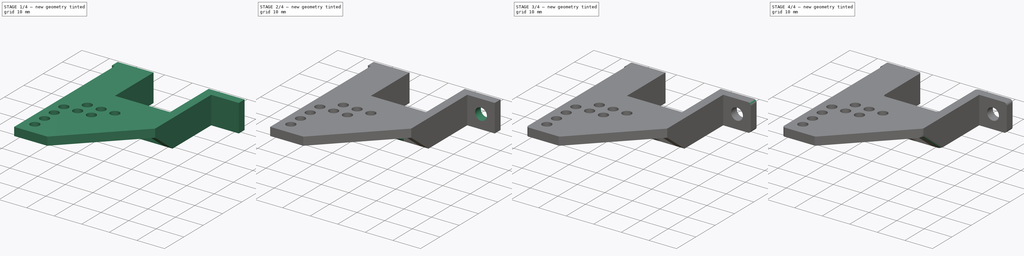
[diagram: build sequence overview — one tinted view per stage of 4, left to right]
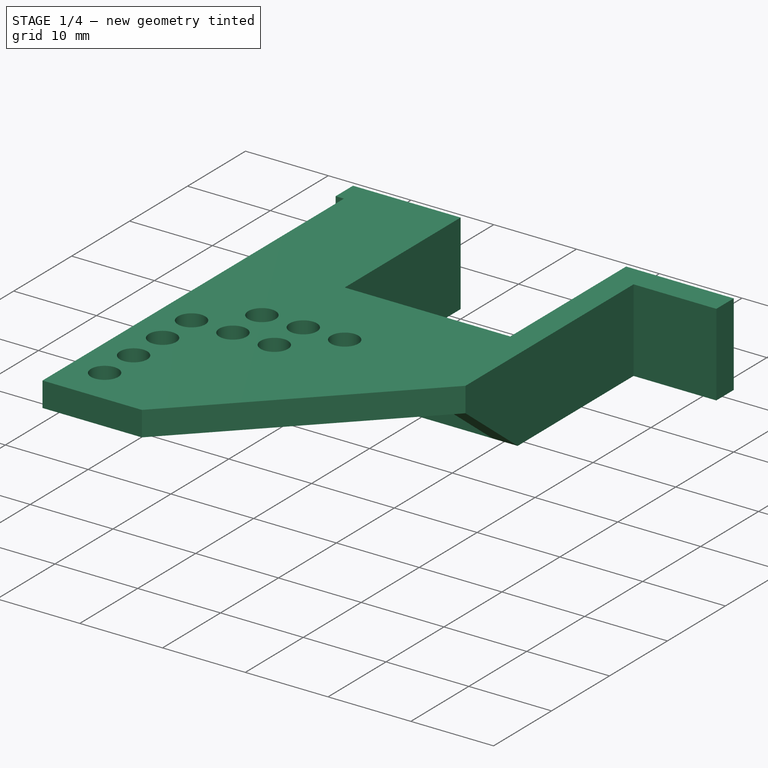
[diagram: stage 1 of 4 — iso view after this stage's code; geometry added in this stage tinted green]
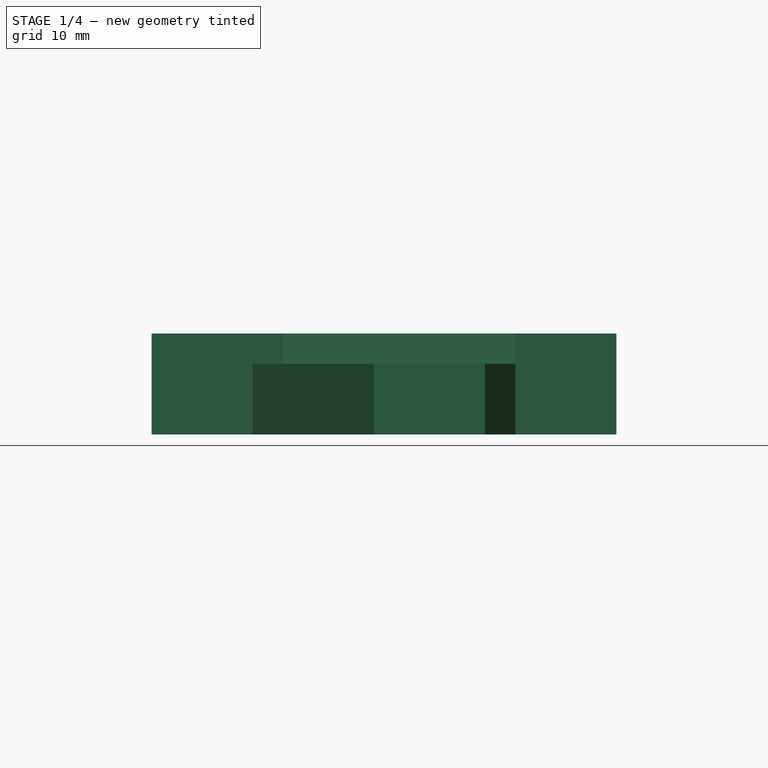
[diagram: stage 1 of 4 — front view after this stage's code; geometry added in this stage tinted green]
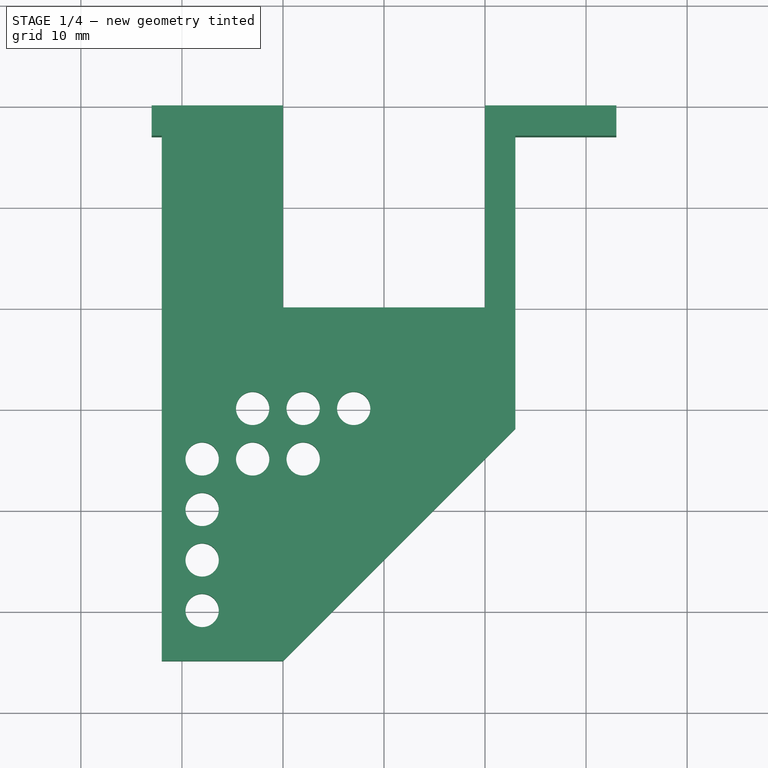
[diagram: stage 1 of 4 — top view after this stage's code; geometry added in this stage tinted green]
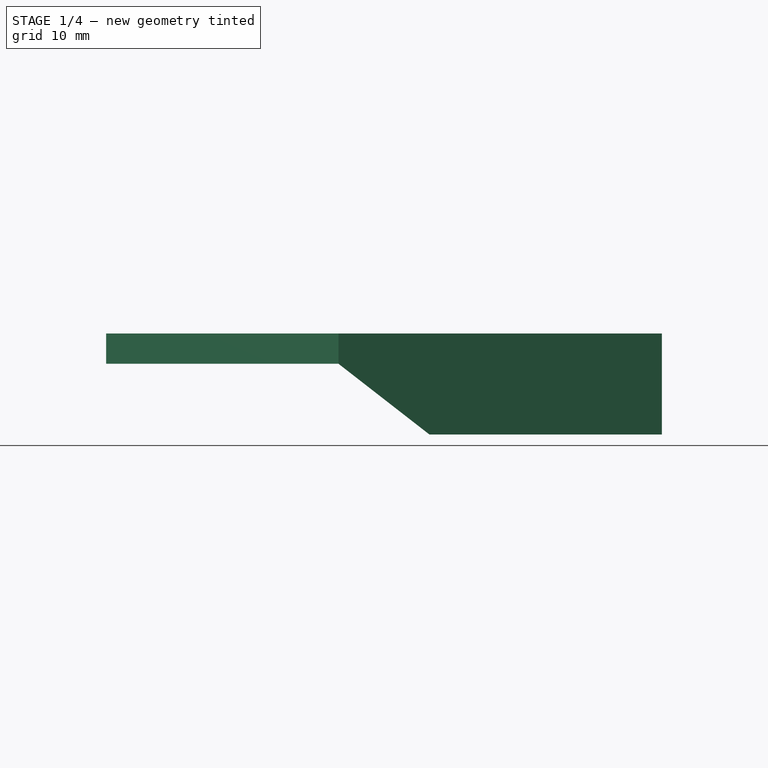
[diagram: stage 1 of 4 — right view after this stage's code; geometry added in this stage tinted green]
FCSTD DOCUMENT  (FreeCAD 0.19R24276 (Git))
Label: Zero_y_holder
License: All rights reserved
LicenseURL: http://en.wikipedia.org/wiki/All_rights_reserved
objects: Sketcher::SketchObject×7, PartDesign::Fillet×7, PartDesign::Pad×5, PartDesign::Pocket×2, PartDesign::Body×1
note: 36 computed .brp shape members not serialized (recipe doc carries the construction recipe); baked Part::Feature solids carry a one-line shape summary decoded from their .brp

FEATURE [Sketcher::SketchObject] Sketch
  FullyConstrained = true
  MapMode = 5
  Support = -> [XY_Plane]
  sketch-geometry (12):
    g0: LineSegment StartX=0 StartY=0 StartZ=0 EndX=20 EndY=0 EndZ=0
    g1: LineSegment StartX=23 StartY=17 StartZ=0 EndX=23 EndY=-3 EndZ=0
    g2: LineSegment StartX=23 StartY=-3 StartZ=0 EndX=-3 EndY=-3 EndZ=0
    g3: LineSegment StartX=-3 StartY=-3 StartZ=0 EndX=-3 EndY=17 EndZ=0
    g4: LineSegment StartX=-13 StartY=20 StartZ=0 EndX=0 EndY=20 EndZ=0
    g5: LineSegment StartX=33 StartY=20 StartZ=0 EndX=33 EndY=17 EndZ=0
    g6: LineSegment StartX=33 StartY=17 StartZ=0 EndX=23 EndY=17 EndZ=0
    g7: LineSegment StartX=-13 StartY=17 StartZ=0 EndX=-13 EndY=20 EndZ=0
    g8: LineSegment StartX=-3 StartY=17 StartZ=0 EndX=-13 EndY=17 EndZ=0
    g9: LineSegment StartX=20 StartY=20 StartZ=0 EndX=33 EndY=20 EndZ=0
    g10: LineSegment StartX=20 StartY=0 StartZ=0 EndX=20 EndY=20 EndZ=0
    g11: LineSegment StartX=0 StartY=0 StartZ=0 EndX=0 EndY=20 EndZ=0
  constraints (33):
    c: Horizontal(g0)
    c: Coincident(g0,g-1)
    c: DistanceX(g0,g0) = 20
    c: Coincident(g1,g2)
    c: Coincident(g2,g3)
    c: Horizontal(g2)
    c: Vertical(g1)
    c: Vertical(g3)
    c: DistanceX(g2,g2) = 26
    c: DistanceX(g2,g-1) = 3
    c: DistanceY(g2,g-1) = 3
    c: Coincident(g9,g5)
    c: Coincident(g5,g6)
    c: Coincident(g8,g7)
    c: Coincident(g7,g4)
    c: Horizontal(g4)
    c: Horizontal(g6)
    c: Vertical(g5)
    c: Vertical(g7)
    c: DistanceY(g7,g7) = 3
    c: DistanceX(g4,g9) = 46
    c: Tangent(g6,g8)
    c: Coincident(g3,g8)
    c: Coincident(g6,g1)
    c: Tangent(g4,g9)
    c: Coincident(g10,g0)
    c: Coincident(g10,g9)
    c: Vertical(g10)
    c: Coincident(g11,g-1)
    c: Coincident(g11,g4)
    c: Vertical(g11)
    c: DistanceX(g8,g8) = 10
    c: DistanceY(g0,g5) = 20
FEATURE [PartDesign::Pad] Pad
  Direction = (1,1,1)
  Length = 10
  Length2 = 100
  Profile = -> Sketch
  Type = 0
FEATURE [Sketcher::SketchObject] Sketch001
  FullyConstrained = false
  MapMode = 5
  Placement = pos=(0,0,10) rot=(0,0,1;0rad)
  Support = -> [Pad]
  sketch-geometry (23):
    g0: LineSegment StartX=-12 StartY=0 StartZ=0 EndX=35.8935 EndY=0 EndZ=0
    g1: LineSegment StartX=2.4e-15 StartY=-35 StartZ=0 EndX=-12 EndY=-35 EndZ=0
    g2: LineSegment StartX=-12 StartY=-35 StartZ=0 EndX=-12 EndY=-12 EndZ=0
    g3: LineSegment StartX=-3 StartY=-3 StartZ=0 EndX=23 EndY=-3 EndZ=0
    g4: LineSegment StartX=23 StartY=-3 StartZ=0 EndX=23 EndY=0 EndZ=0
    g5: LineSegment StartX=23 StartY=0 StartZ=0 EndX=-3 EndY=0 EndZ=0
    g6: LineSegment StartX=-3 StartY=0 StartZ=0 EndX=-3 EndY=-3 EndZ=0
    g7: LineSegment StartX=0 StartY=-35 StartZ=0 EndX=23 EndY=-12 EndZ=0
    g8: LineSegment StartX=0 StartY=0 StartZ=0 EndX=0 EndY=-35 EndZ=0
    g9: LineSegment StartX=23 StartY=-3 StartZ=0 EndX=23 EndY=-12 EndZ=0
    g10: LineSegment StartX=-3 StartY=-3 StartZ=0 EndX=-12 EndY=-12 EndZ=0
    g11: Circle CenterX=-8 CenterY=-20 CenterZ=0 NormalX=0 NormalY=0 NormalZ=1 AngleXU=0 Radius=1.65
    g12: Circle CenterX=-8 CenterY=-25 CenterZ=0 NormalX=0 NormalY=0 NormalZ=1 AngleXU=0 Radius=1.65
    g13: Circle CenterX=-3 CenterY=-10 CenterZ=0 NormalX=0 NormalY=0 NormalZ=1 AngleXU=0 Radius=1.65
    g14: Circle CenterX=2 CenterY=-10 CenterZ=0 NormalX=0 NormalY=0 NormalZ=1 AngleXU=0 Radius=1.65
    g15: Circle CenterX=7 CenterY=-10 CenterZ=0 NormalX=0 NormalY=0 NormalZ=1 AngleXU=0 Radius=1.65
    g16: Circle CenterX=-3 CenterY=-15 CenterZ=0 NormalX=0 NormalY=0 NormalZ=1 AngleXU=0 Radius=1.65
    g17: Circle CenterX=-8 CenterY=-30 CenterZ=0 NormalX=0 NormalY=0 NormalZ=1 AngleXU=0 Radius=1.65
    g18: Circle CenterX=-8 CenterY=-15 CenterZ=0 NormalX=0 NormalY=0 NormalZ=1 AngleXU=0 Radius=1.65
    g19: Circle CenterX=2 CenterY=-15 CenterZ=0 NormalX=0 NormalY=0 NormalZ=1 AngleXU=0 Radius=1.65
    g20: LineSegment StartX=-12 StartY=-12 StartZ=0 EndX=-12 EndY=17 EndZ=0
    g21: LineSegment StartX=-3 StartY=-3 StartZ=0 EndX=-3 EndY=17 EndZ=0
    g22: LineSegment StartX=-3 StartY=17 StartZ=0 EndX=-12 EndY=17 EndZ=0
  constraints (66):
    c: Coincident(g1,g2)
    c: Horizontal(g0)
    c: Horizontal(g1)
    c: Vertical(g2)
    c: PointOnObject(g0,g-1)
    c: Coincident(g3,g4)
    c: Coincident(g4,g5)
    c: Coincident(g5,g6)
    c: Coincident(g6,g3)
    c: Horizontal(g3)
    c: Horizontal(g5)
    c: Vertical(g4)
    c: Vertical(g6)
    c: PointOnObject(g4,g-1)
    c: DistanceX(g3,g3) = 26
    c: DistanceX(g3,g-1) = 3
    c: DistanceY(g3,g5) = 3
    c: DistanceX(g1,g3) = 35
    c: DistanceY(g1,g5) = 35
    c: Angle(g5,g7) = 0.785398
    c: Coincident(g8,g-1)
    c: PointOnObject(g8,g1)
    c: Coincident(g7,g8)
    c: Vertical(g8)
    c: PointOnObject(g1,g7)
    c: Coincident(g9,g3)
    c: Vertical(g9)
    c: Coincident(g7,g9)
    c: Coincident(g10,g3)
    c: Angle(g10,g3) = 2.35619
    c: Coincident(g10,g2)
    c: Diameter(g11) = 3.3
    c: Vertical(g12,g11)
    c: Equal(g11,g13) = 3.3
    c: Equal(g13,g14)
    c: Equal(g13,g15)
    c: Horizontal(g13,g15)
    c: Horizontal(g15,g14)
    c: DistanceX(g13,g14) = 5
    c: DistanceX(g14,g15) = 5
    c: Vertical(g16,g13)
    c: DistanceY(g13,g5) = 10
    c: Vertical(g17,g12)
    c: DistanceY(g17,g12) = 5
    c: Vertical(g11,g18)
    c: Horizontal(g18,g16)
    c: DistanceY(g18,g13) = 5
    c: DistanceY(g11,g18) = 5
    c: DistanceY(g12,g11) = 5
    c: Vertical(g19,g14)
    c: Horizontal(g16,g19)
    c: DistanceX(g18,g16) = 5
    c: Vertical(g13,g3)
    c: Equal(g16,g19)
    c: Equal(g19,g18)
    c: Equal(g18,g11)
    c: Equal(g11,g12)
    c: Equal(g12,g17)
    c: Coincident(g20,g2)
    c: Vertical(g20)
    c: Coincident(g21,g3)
    c: Vertical(g21)
    c: Coincident(g22,g21)
    c: Coincident(g22,g20)
    c: Horizontal(g22)
    c: DistanceY(g5,g21) = 17
FEATURE [PartDesign::Pad] Pad001
  BaseFeature = -> Pad
  Direction = (1,1,1)
  Length = 3
  Length2 = 100
  Profile = -> Sketch001
  Reversed = true
  Type = 0
FEATURE [Sketcher::SketchObject] Sketch002
  FullyConstrained = true
  MapMode = 5
  Placement = pos=(23,0,0) rot=(0.57735,0.57735,0.57735;2.0944rad)
  Support = -> [Pad001]
  sketch-geometry (5):
    g0: LineSegment StartX=-3 StartY=0 StartZ=0 EndX=-12 EndY=0 EndZ=0
    g1: LineSegment StartX=-12 StartY=0 StartZ=0 EndX=-12 EndY=7 EndZ=0
    g2: LineSegment StartX=-12 StartY=7 StartZ=0 EndX=-3 EndY=7 EndZ=0
    g3: LineSegment StartX=-3 StartY=7 StartZ=0 EndX=-3 EndY=0 EndZ=0
    g4: LineSegment StartX=-12 StartY=7 StartZ=0 EndX=-3 EndY=0 EndZ=0
  constraints (14):
    c: Coincident(g0,g1)
    c: Coincident(g1,g2)
    c: Coincident(g2,g3)
    c: Coincident(g3,g0)
    c: Horizontal(g0)
    c: Horizontal(g2)
    c: Vertical(g1)
    c: Vertical(g3)
    c: PointOnObject(g0,g-1)
    c: DistanceX(g0,g-1) = 3
    c: DistanceX(g0,g-1) = 12
    c: DistanceY(g3,g3) = 7
    c: Coincident(g4,g1)
    c: Coincident(g4,g0)
FEATURE [PartDesign::Pad] Pad002
  BaseFeature = -> Pad001
  Direction = (1,1,1)
  Length = 3
  Length2 = 100
  Profile = -> Sketch002
  Reversed = true
  Type = 0
FEATURE [Sketcher::SketchObject] Sketch003
  FullyConstrained = true
  MapMode = 5
  Placement = pos=(-3,0,0) rot=(0.57735,-0.57735,-0.57735;2.0944rad)
  Support = -> [Pad002]
  sketch-geometry (5):
    g0: LineSegment StartX=3 StartY=7 StartZ=0 EndX=6 EndY=7 EndZ=0
    g1: LineSegment StartX=6 StartY=7 StartZ=0 EndX=6 EndY=0 EndZ=0
    g2: LineSegment StartX=6 StartY=0 StartZ=0 EndX=3 EndY=0 EndZ=0
    g3: LineSegment StartX=3 StartY=0 StartZ=0 EndX=3 EndY=7 EndZ=0
    g4: LineSegment StartX=6 StartY=7 StartZ=0 EndX=3 EndY=0 EndZ=0
  constraints (14):
    c: Coincident(g0,g1)
    c: Coincident(g1,g2)
    c: Coincident(g2,g3)
    c: Coincident(g3,g0)
    c: Horizontal(g0)
    c: Horizontal(g2)
    c: Vertical(g1)
    c: Vertical(g3)
    c: PointOnObject(g1,g-1)
    c: DistanceY(g1,g1) = 7
    c: DistanceX(g2,g2) = 3
    c: DistanceX(g-1,g2) = 3
    c: Coincident(g4,g0)
    c: Coincident(g4,g2)
FEATURE [PartDesign::Pad] Pad003
  BaseFeature = -> Pad002
  Direction = (1,1,1)
  Length = 12
  Length2 = 100
  Profile = -> Sketch003
  Reversed = true
  Type = 0
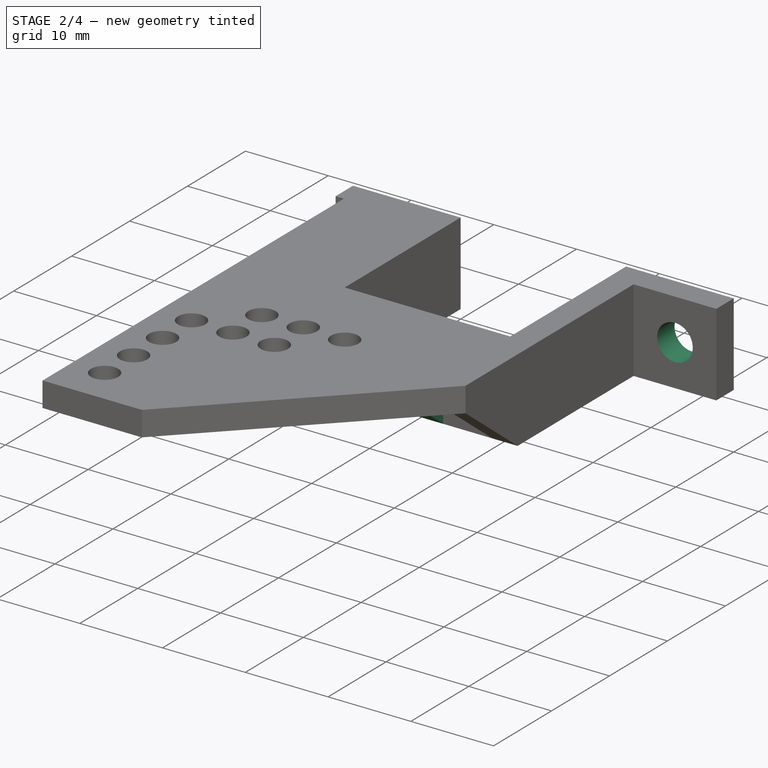
[diagram: stage 2 of 4 — iso view after this stage's code; geometry added in this stage tinted green]
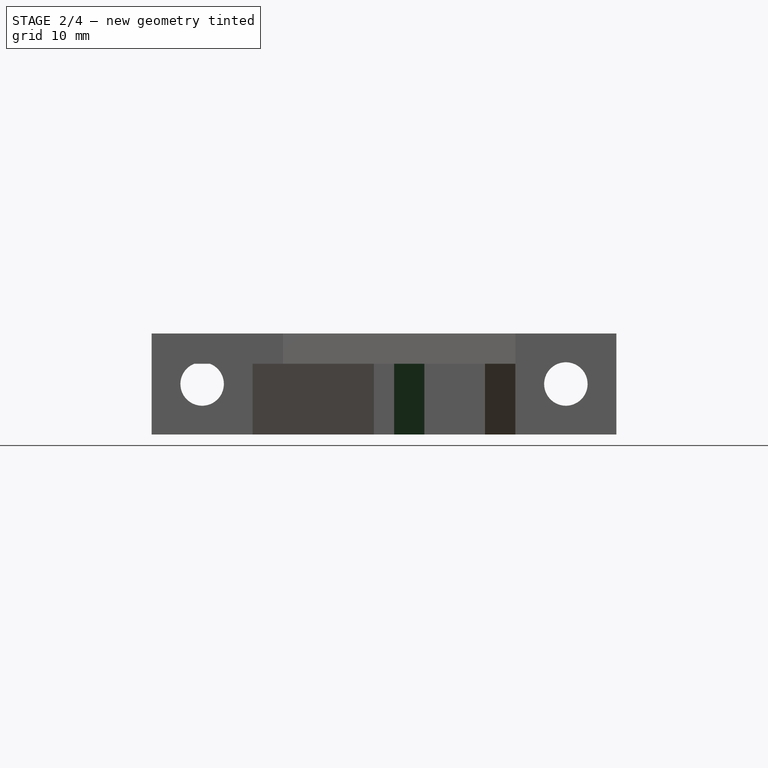
[diagram: stage 2 of 4 — front view after this stage's code; geometry added in this stage tinted green]
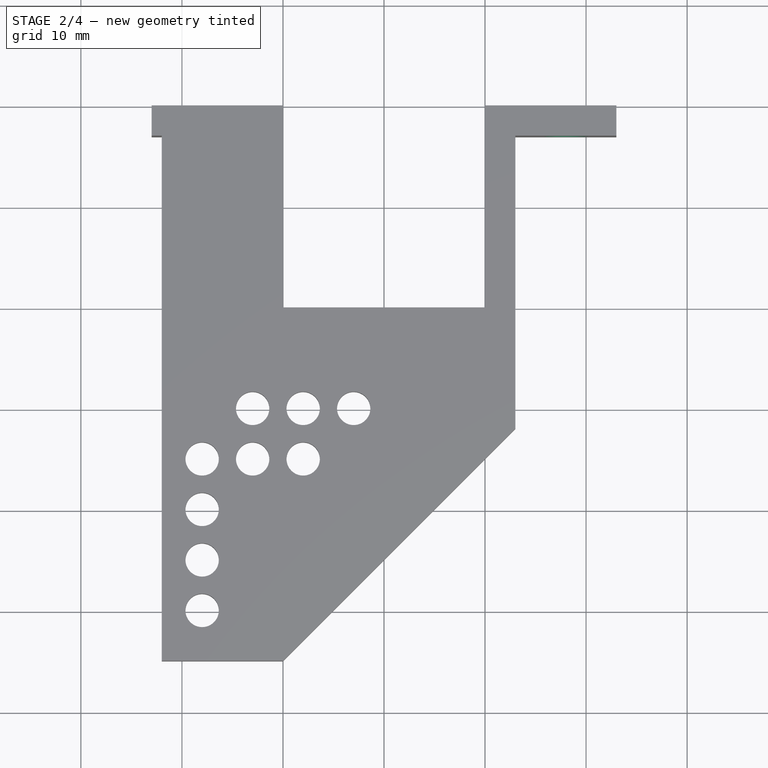
[diagram: stage 2 of 4 — top view after this stage's code; geometry added in this stage tinted green]
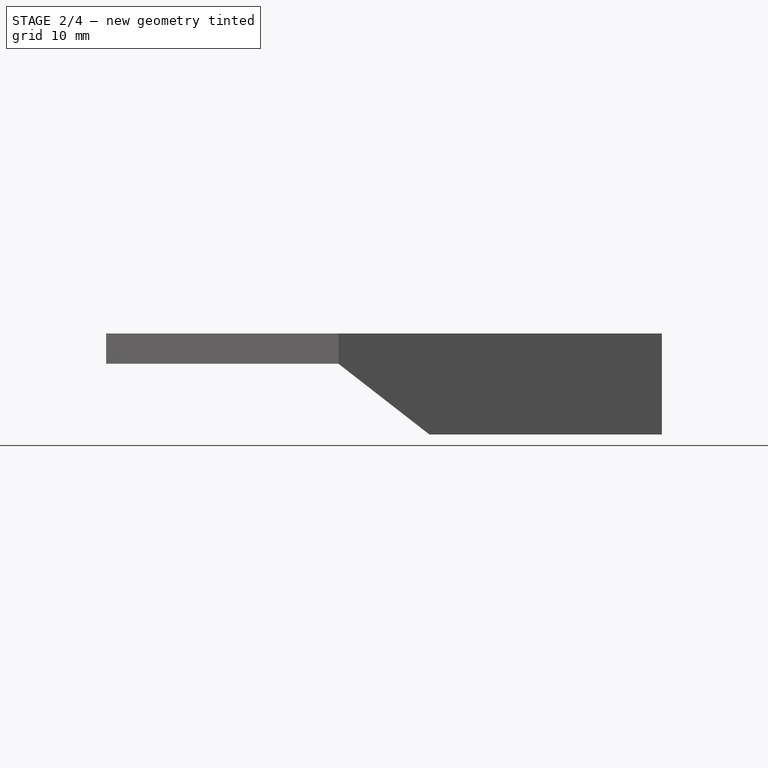
[diagram: stage 2 of 4 — right view after this stage's code; geometry added in this stage tinted green]
FEATURE [Sketcher::SketchObject] Sketch005
  FullyConstrained = true
  MapMode = 5
  Placement = pos=(11,0,0) rot=(0.57735,0.57735,0.57735;2.0944rad)
  sketch-geometry (5):
    g0: LineSegment StartX=-3 StartY=0 StartZ=0 EndX=-12 EndY=0 EndZ=0
    g1: LineSegment StartX=-12 StartY=0 StartZ=0 EndX=-12 EndY=7 EndZ=0
    g2: LineSegment StartX=-12 StartY=7 StartZ=0 EndX=-3 EndY=7 EndZ=0
    g3: LineSegment StartX=-3 StartY=7 StartZ=0 EndX=-3 EndY=0 EndZ=0
    g4: LineSegment StartX=-12 StartY=7 StartZ=0 EndX=-3 EndY=0 EndZ=0
  constraints (14):
    c: Coincident(g0,g1)
    c: Coincident(g1,g2)
    c: Coincident(g2,g3)
    c: Coincident(g3,g0)
    c: Horizontal(g0)
    c: Horizontal(g2)
    c: Vertical(g1)
    c: Vertical(g3)
    c: PointOnObject(g0,g-1)
    c: DistanceX(g0,g-1) = 3
    c: DistanceX(g0,g-1) = 12
    c: DistanceY(g3,g3) = 7
    c: Coincident(g4,g1)
    c: Coincident(g4,g0)
FEATURE [PartDesign::Pad] Pad004
  BaseFeature = -> Pad003
  Direction = (1,1,1)
  Length = 3
  Length2 = 100
  Profile = -> Sketch005
  Type = 0
FEATURE [Sketcher::SketchObject] Sketch006
  FullyConstrained = true
  MapMode = 5
  Placement = pos=(-1.21e-14,17,0) rot=(1,0,0;1.5708rad)
  Support = -> [Pad004]
  sketch-geometry (2):
    g0: Circle CenterX=28 CenterY=5 CenterZ=0 NormalX=0 NormalY=0 NormalZ=1 AngleXU=0 Radius=2.15
    g1: Circle CenterX=-8 CenterY=5 CenterZ=0 NormalX=0 NormalY=0 NormalZ=1 AngleXU=0 Radius=2.15
  constraints (6):
    c: Diameter(g0) = 4.3
    c: DistanceX(g-1,g0) = 28
    c: DistanceY(g-1,g0) = 5
    c: Equal(g0,g1) = 4.3
    c: Horizontal(g1,g0)
    c: DistanceX(g1,g-1) = 8
FEATURE [PartDesign::Pocket] Pocket
  BaseFeature = -> Pad004
  Length = 5
  Length2 = 100
  Profile = -> Sketch006
  Type = 1
FEATURE [Sketcher::SketchObject] Sketch007
  FullyConstrained = false
  MapMode = 5
  Placement = pos=(-1.21e-14,17,0) rot=(1,0,0;1.5708rad)
  Support = -> [Pocket]
  sketch-geometry (1):
    g0: Circle CenterX=-8 CenterY=5 CenterZ=0 NormalX=0 NormalY=0 NormalZ=1 AngleXU=0 Radius=3.49439
  constraints (2):
    c: DistanceY(g-1,g0) = 5
    c: DistanceX(g0,g-1) = 8
FEATURE [PartDesign::Pocket] Pocket001
  BaseFeature = -> Pocket
  Length = 5
  Length2 = 100
  Profile = -> Sketch007
  Reversed = true
  Type = 0
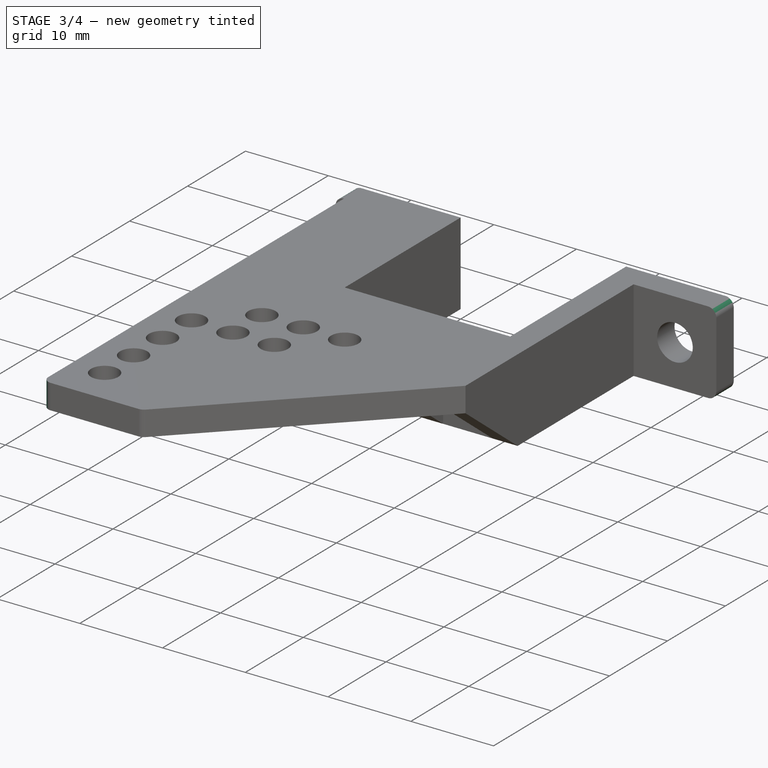
[diagram: stage 3 of 4 — iso view after this stage's code; geometry added in this stage tinted green]
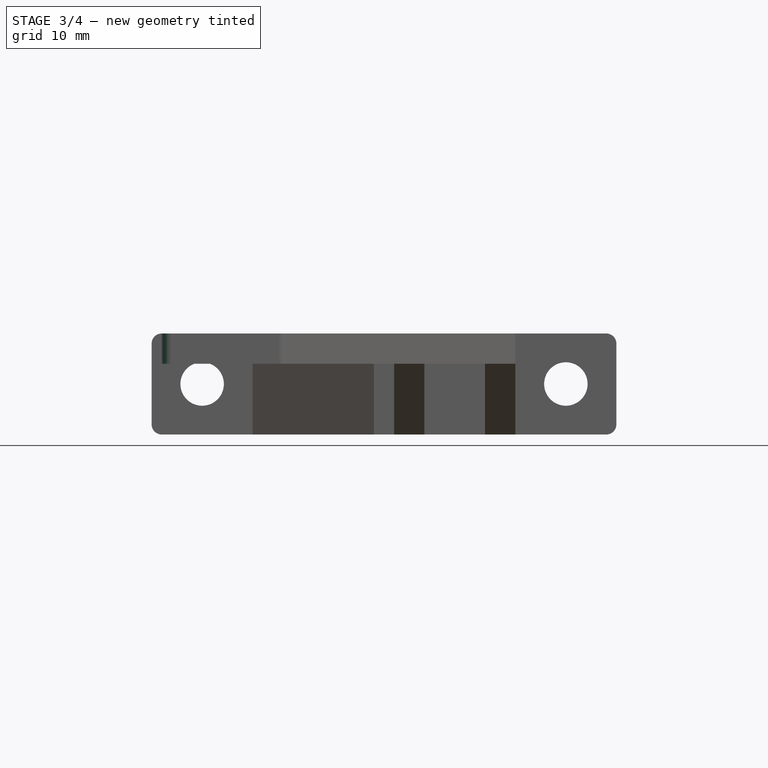
[diagram: stage 3 of 4 — front view after this stage's code; geometry added in this stage tinted green]
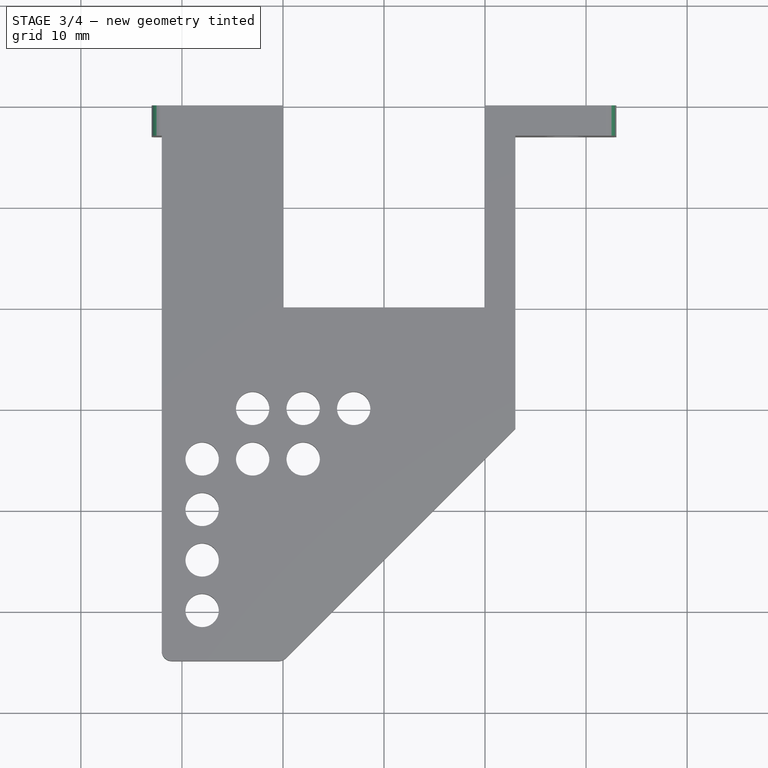
[diagram: stage 3 of 4 — top view after this stage's code; geometry added in this stage tinted green]
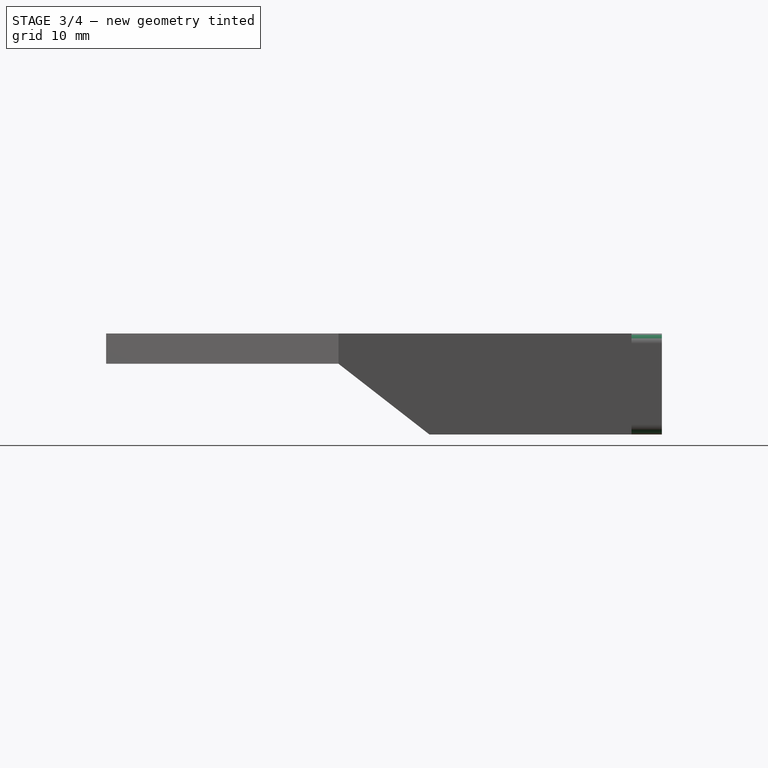
[diagram: stage 3 of 4 — right view after this stage's code; geometry added in this stage tinted green]
FEATURE [PartDesign::Fillet] Fillet
  Base = -> Pocket001 [Edge22,Edge12,Edge32,Edge25]
  BaseFeature = -> Pocket001
  Radius = 1
  SupportTransform = false
FEATURE [PartDesign::Fillet] Fillet001
  Base = -> Fillet [Edge126]
  BaseFeature = -> Fillet
  Radius = 1
  SupportTransform = false
FEATURE [PartDesign::Fillet] Fillet002
  Base = -> Fillet001 [Edge39]
  BaseFeature = -> Fillet001
  Radius = 1
  SupportTransform = false
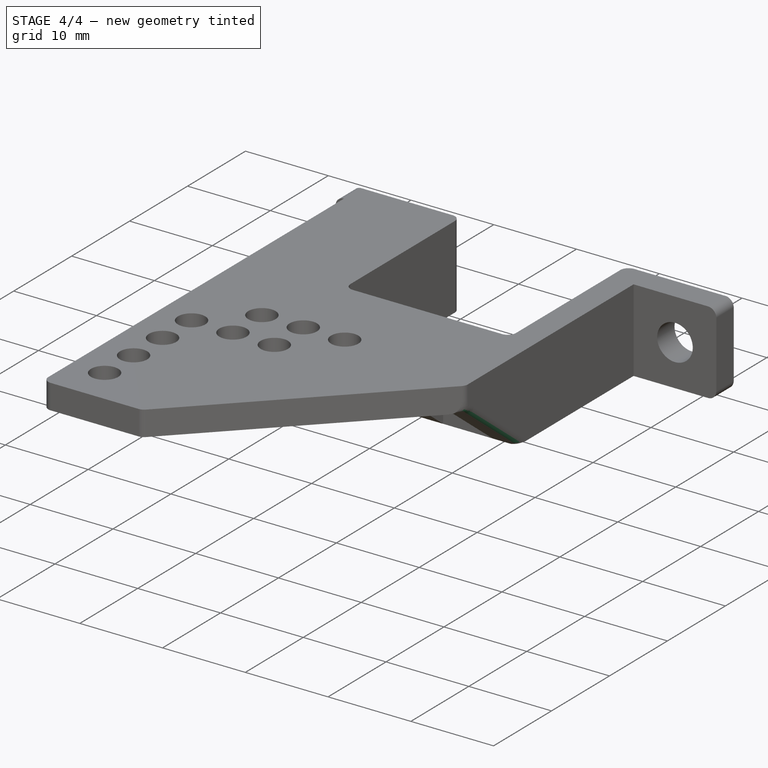
[diagram: stage 4 of 4 — iso view after this stage's code; geometry added in this stage tinted green]
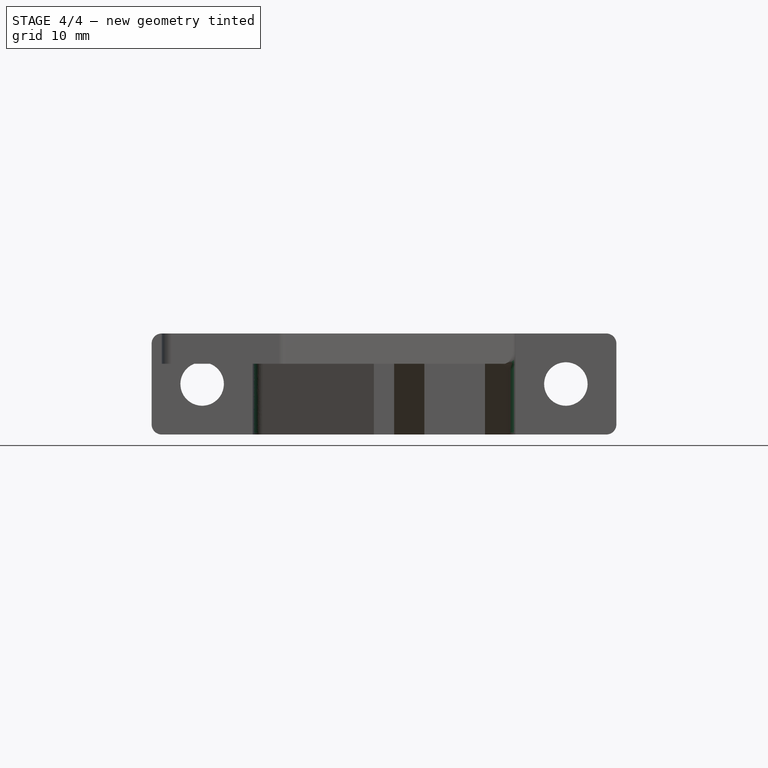
[diagram: stage 4 of 4 — front view after this stage's code; geometry added in this stage tinted green]
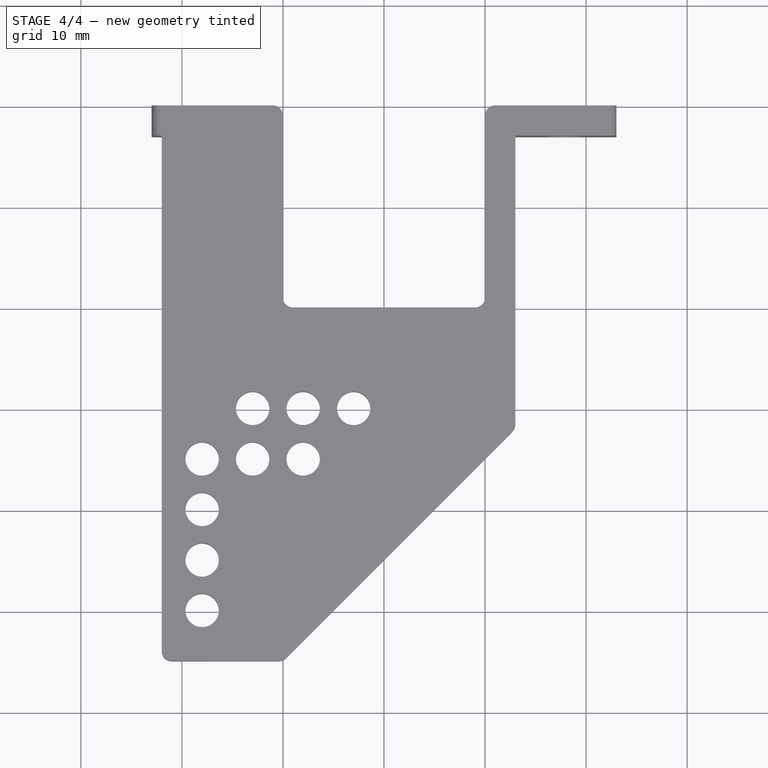
[diagram: stage 4 of 4 — top view after this stage's code; geometry added in this stage tinted green]
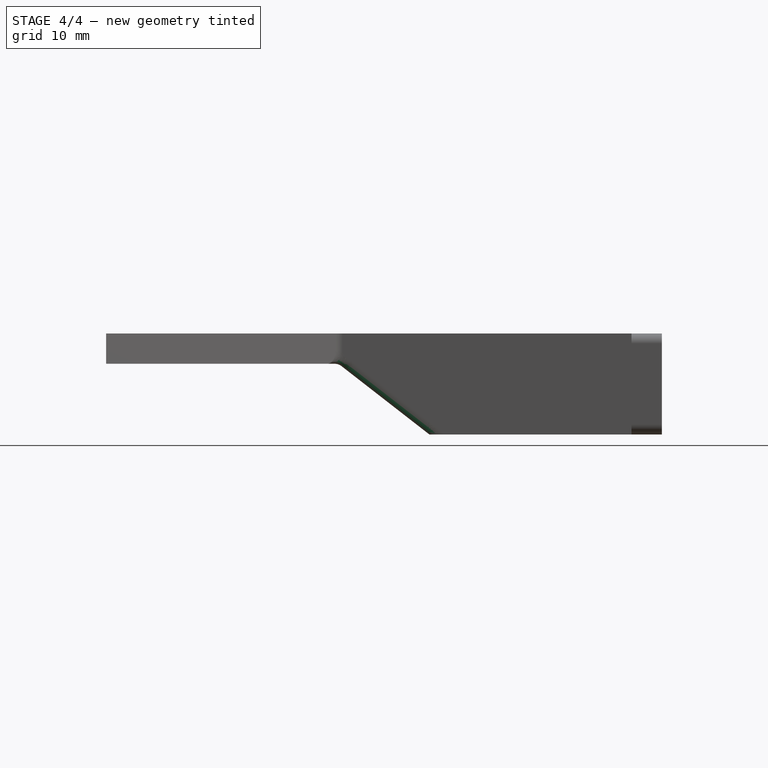
[diagram: stage 4 of 4 — right view after this stage's code; geometry added in this stage tinted green]
FEATURE [PartDesign::Fillet] Fillet003
  Base = -> Fillet002 [Edge69]
  BaseFeature = -> Fillet002
  Radius = 1
  SupportTransform = false
FEATURE [PartDesign::Fillet] Fillet004
  Base = -> Fillet003 [Edge69,Edge74]
  BaseFeature = -> Fillet003
  Radius = 1
  SupportTransform = false
FEATURE [PartDesign::Fillet] Fillet005
  Base = -> Fillet004 [Edge149,Edge151]
  BaseFeature = -> Fillet004
  Radius = 1
  SupportTransform = false
FEATURE [PartDesign::Fillet] Fillet006
  Base = -> Fillet005 [Edge22,Edge42]
  BaseFeature = -> Fillet005
  Radius = 1
  SupportTransform = false
FEATURE [PartDesign::Body] Body
  Group = -> [Sketch,Pad,Sketch001,Pad001,Sketch002,Pad002,Sketch003,Pad003,Sketch005,Pad004,Sketch006,Pocket,Sketch007,Pocket001,Fillet,Fillet001,Fillet002,Fillet003,Fillet004,Fillet005,Fillet006]
  Origin = -> Origin
  Tip = -> Fillet006
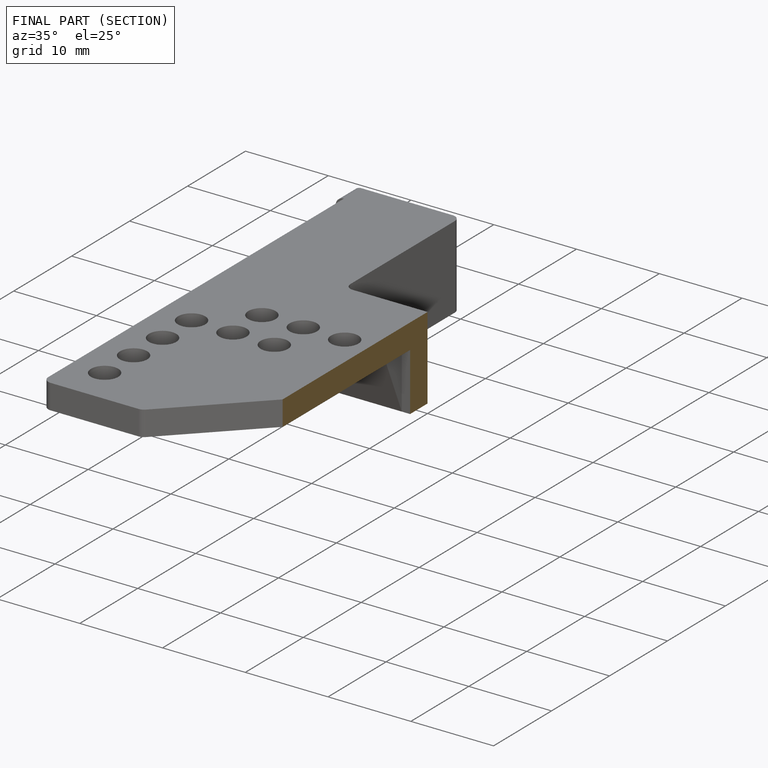
[diagram: finished part — half-section view (interior)]
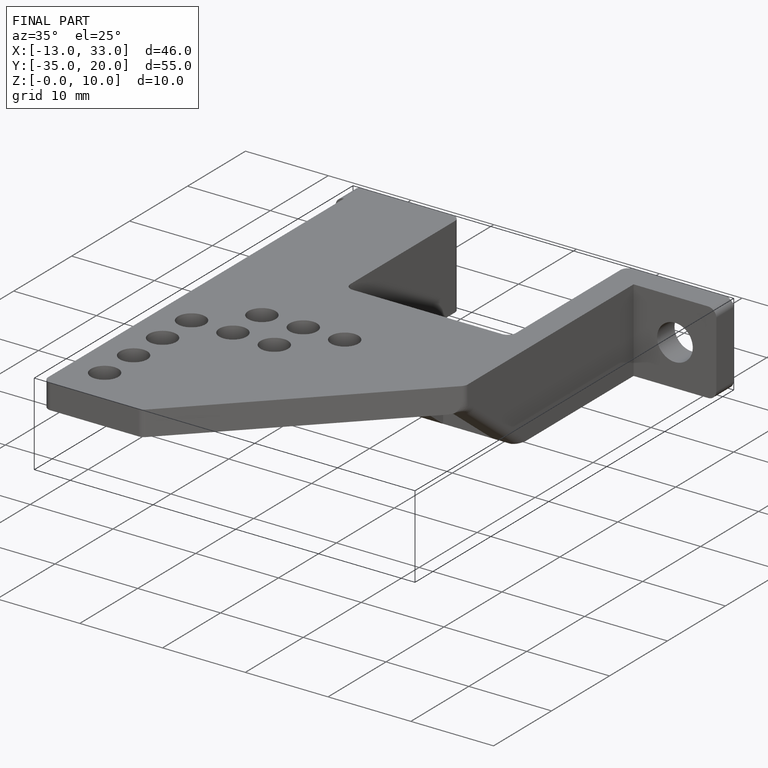
[diagram: finished part — iso view with bounding-box wireframe]
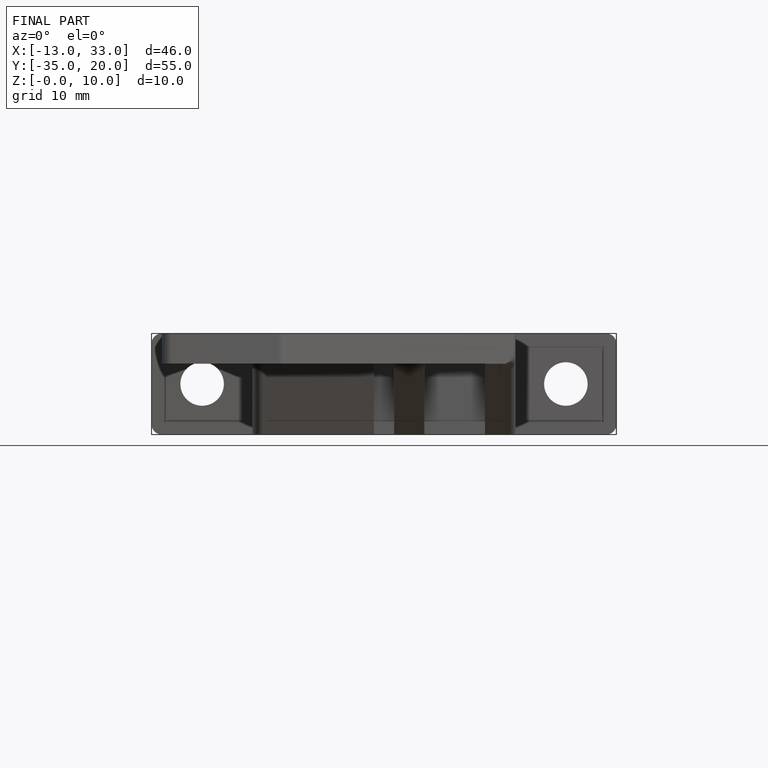
[diagram: finished part — front view with bounding-box wireframe]
